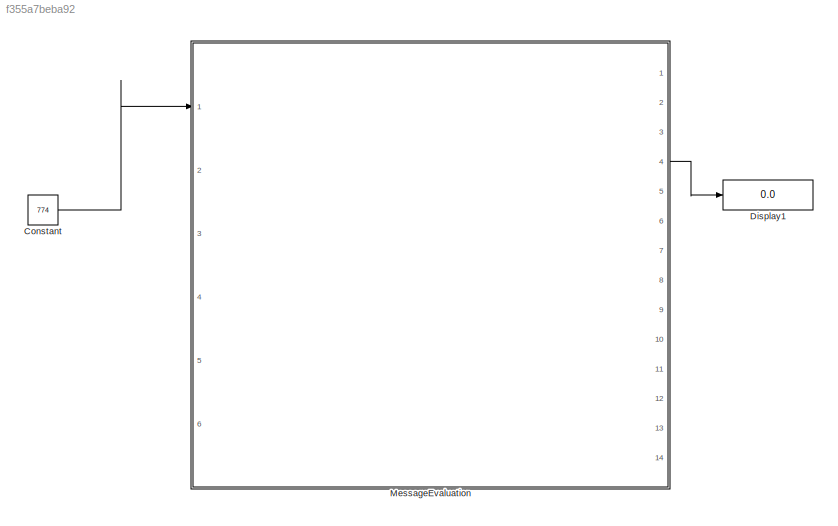
MODEL slx_f355a7beba92
KIND model
CONFIG AbsTol = auto
CONFIG EnableMultiTasking = off
CONFIG FixedStep = auto
CONFIG MaxStep = auto
CONFIG MinStep = auto
CONFIG RelTol = 1e-3
CONFIG SampleTimeConstraint = Unconstrained
CONFIG Solver = VariableStepAuto
CONFIG SolverName = VariableStepAuto
CONFIG StartTime = 0.0
CONFIG StopTime = 10.0
BLOCK [Constant] Constant
  OutDataTypeStr = uint16
  Value = 774
BLOCK [Display] Display1
  Decimation = 1
  Ports = [1]
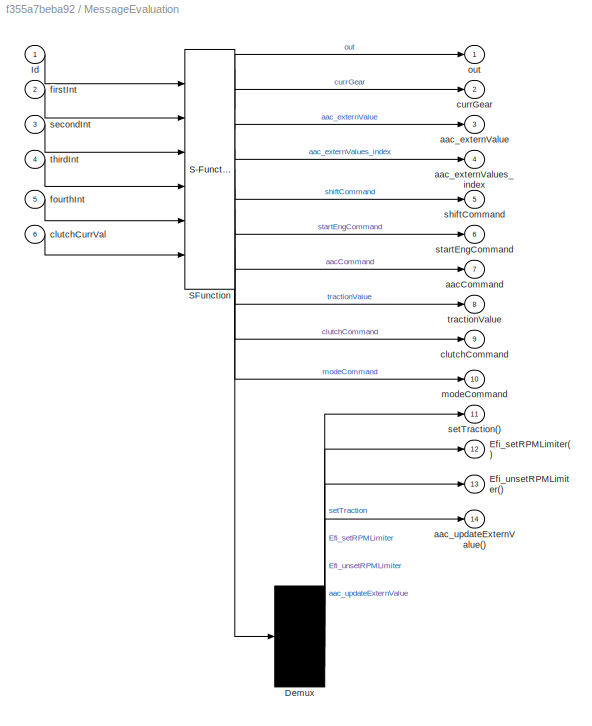
BLOCK [SubSystem] MessageEvaluation
  ErrorFcn = Stateflow.Translate.translate
  PermitHierarchicalResolution = ExplicitOnly
  Ports = [6, 14]
  RequestExecContextInheritance = off
  SFBlockType = Chart
  SystemSampleTime = 0.01
  TreatAsAtomicUnit = on
BLOCK [Demux] MessageEvaluation/ Demux 
  Ports = [1, 4]
BLOCK [S-Function] MessageEvaluation/ SFunction 
  EnableBusSupport = on
  FunctionName = sf_sfun
  PortCounts = [6 11]
  Ports = [6, 11]
  SFcnIsStateOwnerBlock = off
  SFunctionDeploymentMode = off
  Tag = Stateflow S-Function C_model 2
BLOCK [Outport] MessageEvaluation/Efi_setRPMLimiter()
  IconDisplay = Port number
  Port = 12
BLOCK [Outport] MessageEvaluation/Efi_unsetRPMLimiter()
  IconDisplay = Port number
  Port = 13
BLOCK [Inport] MessageEvaluation/Id
  IconDisplay = Port number
BLOCK [Outport] MessageEvaluation/aacCommand
  IconDisplay = Port number
  Port = 7
BLOCK [Outport] MessageEvaluation/aac_externValue
  IconDisplay = Port number
  Port = 3
BLOCK [Outport] MessageEvaluation/aac_externValues_index
  IconDisplay = Port number
  Port = 4
BLOCK [Outport] MessageEvaluation/aac_updateExternValue()
  IconDisplay = Port number
  Port = 14
BLOCK [Outport] MessageEvaluation/clutchCommand
  IconDisplay = Port number
  Port = 9
BLOCK [Inport] MessageEvaluation/clutchCurrVal
  IconDisplay = Port number
  Port = 6
BLOCK [Outport] MessageEvaluation/currGear
  IconDisplay = Port number
  Port = 2
BLOCK [Inport] MessageEvaluation/firstInt
  IconDisplay = Port number
  Port = 2
BLOCK [Inport] MessageEvaluation/fourthInt
  IconDisplay = Port number
  Port = 5
BLOCK [Outport] MessageEvaluation/modeCommand
  IconDisplay = Port number
  Port = 10
BLOCK [Outport] MessageEvaluation/out
  IconDisplay = Port number
BLOCK [Inport] MessageEvaluation/secondInt
  IconDisplay = Port number
  Port = 3
BLOCK [Outport] MessageEvaluation/setTraction()
  IconDisplay = Port number
  Port = 11
BLOCK [Outport] MessageEvaluation/shiftCommand
  IconDisplay = Port number
  Port = 5
BLOCK [Outport] MessageEvaluation/startEngCommand
  IconDisplay = Port number
  Port = 6
BLOCK [Inport] MessageEvaluation/thirdInt
  IconDisplay = Port number
  Port = 4
BLOCK [Outport] MessageEvaluation/tractionValue
  IconDisplay = Port number
  Port = 8
LINE Constant:1 -> MessageEvaluation:1
LINE MessageEvaluation:4 -> Display1:1
CHART MessageEvaluation states=18 transitions=85
  STATE_LABEL 'GEAR_RPM_UPDATE\nentry:\n currGear = firstInt;\n aac_externValues_index = uint16(aac_values.RPM);\n aac_externValue = secondInt;\n send(aac_updateExternValue);'
  STATE_LABEL 'IDLE\n'
  STATE_LABEL 'sendStartEngCommand'
  STATE_LABEL '[startEngCommand >= 255]'
  STATE_LABEL '{startEngCommand = startEngCommand + 1;}'
  STATE_LABEL '{startEngCommand = 0}'
  STATE_LABEL 'START_ENGINE\nentry:\n sendStartEngCommand();'
  STATE_LABEL 'SW_GEARSHIFT'
  STATE_LABEL 'SetLimiter\nentry:\n send(Efi_setRPMLimiter);\n'
  STATE_LABEL 'UnsetLimiter\nentry:\n send(Efi_unsetRPMLimiter);'
  STATE_LABEL 'START_SHIFT\nentry:\n sendShiftCommand(firstInt);\n'
  STATE_LABEL '[firstInt== RPM_LIMITER_ON]'
  STATE_LABEL '[firstInt== RPM_LIMITER_OFF]'
  STATE_LABEL 'SetLimiter\nentry:\n send(Efi_setRPMLimiter);\n'
  STATE_LABEL 'UnsetLimiter\nentry:\n send(Efi_unsetRPMLimiter);'
  STATE_LABEL 'START_SHIFT\nentry:\n sendShiftCommand(firstInt);\n'
  STATE_LABEL 'sendShiftCommand(com)'
  STATE_LABEL '[shiftCommand[0] >= 255]'
  STATE_LABEL '{shiftCommand[0] = shiftCommand[0] + 1}'
  STATE_LABEL '{shiftCommand[0] = 0}'
  STATE_LABEL '{shiftCommand[1] = com}'
  STATE_LABEL '[clutchCurrVal ~= 100]'
  STATE_LABEL '[(com == GEAR_COMMAND_NEUTRAL_UP) || (com == GEAR_COMMAND_NEUTRAL_DOWN) ||  (com == GEAR_COMMAND_DOWN) ]'
  STATE_LABEL '{sendAacCommand(STOP_COM)}'
  STATE_LABEL 'sendClutchCommand(com)'
  STATE_LABEL '[clutchCommand[0] >= 255]'
  STATE_LABEL '{clutchCommand[0] = clutchCommand[0] + 1}'
  STATE_LABEL '{clutchCommand[0] = 0}'
  STATE_LABEL '{clutchCommand[1] = com}'
  STATE_LABEL 'WHEEL_SPEED_UPDATE\nentry:\n aac_externValues_index = uint16(aac_values.WHEEL_SPEED)\n aac_externValue = firstInt/10;\n send(aac_updateExternValue);\n'
  STATE_LABEL 'SET_CLUTCH\nentry:\nclutchSetVal = firstInt>>8;\n'
  STATE_LABEL '[clutchSetVal > AAC_CLUTCH_NOISE_LEVEL]'
  STATE_LABEL '{sendAacCommand(STOP_COM);}'
  STATE_LABEL '{sendClutchCommand(clutchSetVal);}'
  STATE_LABEL 'sendAacCommand(com)'
  STATE_LABEL '[aacCommand[0] >= 255]'
  STATE_LABEL '{aacCommand[0] = aacCommand[0] + 1}'
  STATE_LABEL '{aacCommand[0] = 0}'
  STATE_LABEL '{aacCommand[1] = com}'
  STATE_LABEL 'AAC_COM\n'
